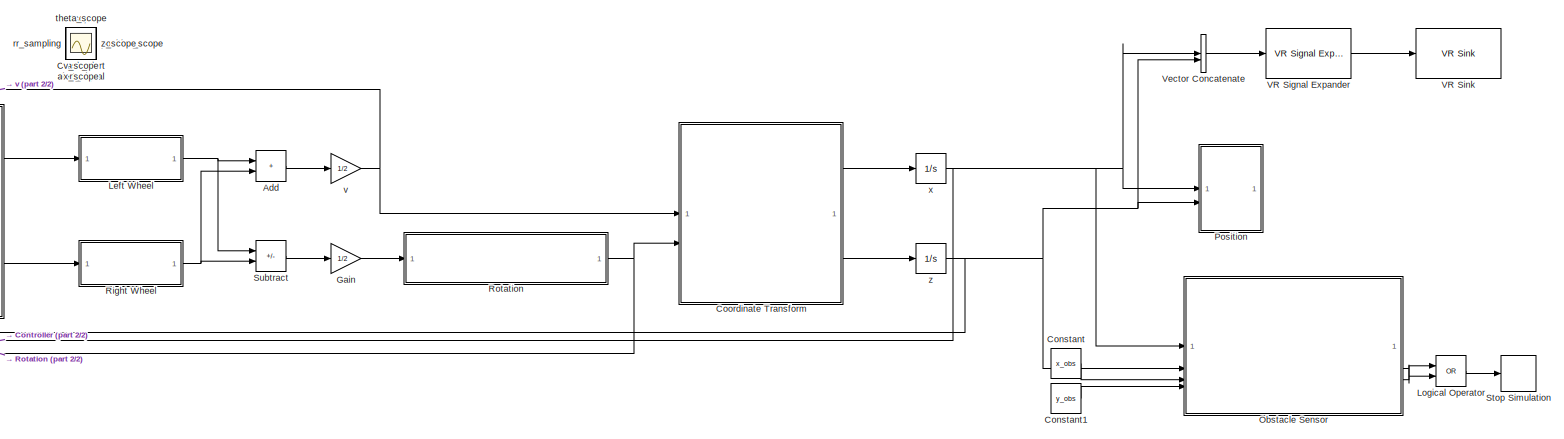
[diagram: root canvas - part 1/2, most of the canvas]
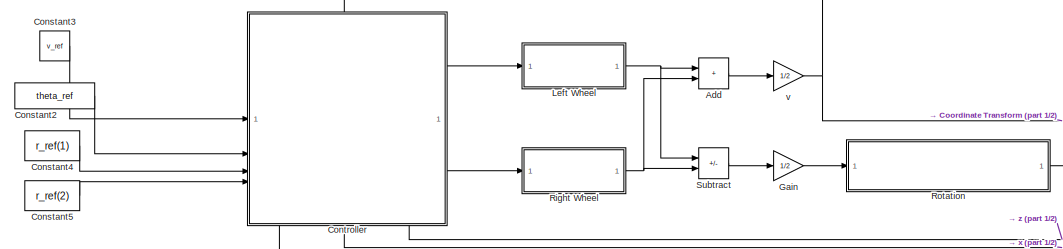
[diagram: root canvas - part 2/2, middle left region]
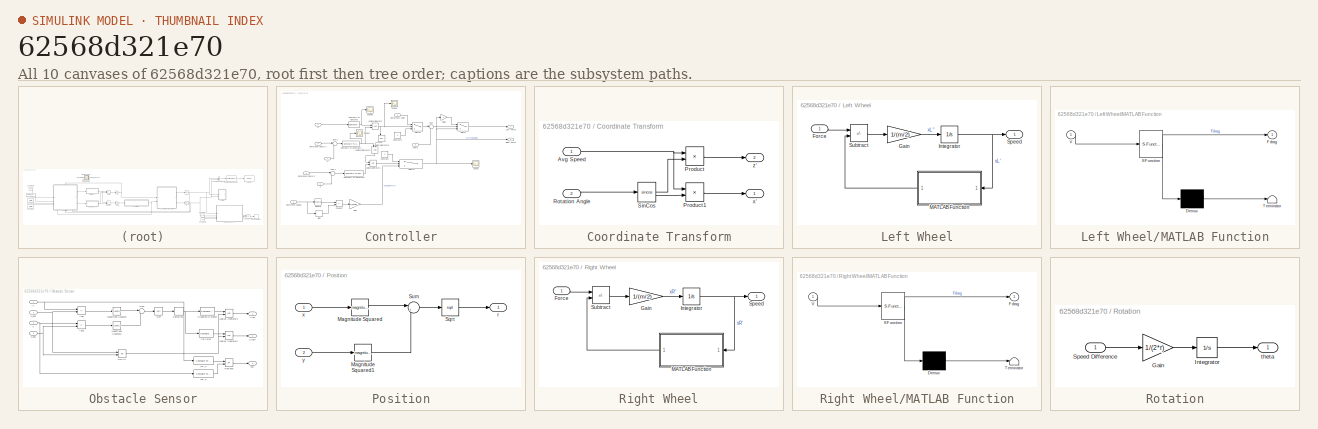
[diagram: thumbnail index - all 10 canvases of the model, root first then tree order]
MODEL slx_62568d321e70
KIND model
CONFIG AbsTol = auto
CONFIG EnableMultiTasking = off
CONFIG FixedStep = auto
CONFIG MaxStep = auto
CONFIG MinStep = auto
CONFIG RelTol = 1e-3
CONFIG SampleTimeConstraint = Unconstrained
CONFIG SolverName = VariableStepAuto
CONFIG StartTime = 0.0
CONFIG StopTime = 50.0
BLOCK [Sum] Add
  IconShape = rectangular
BLOCK [Constant] Constant
  Value = x_obs
BLOCK [Constant] Constant1
  Value = y_obs
BLOCK [Constant] Constant2
  Value = theta_ref
BLOCK [Constant] Constant3
  Value = v_ref
BLOCK [Constant] Constant4
  Value = r_ref(1)
BLOCK [Constant] Constant5
  Value = r_ref(2)
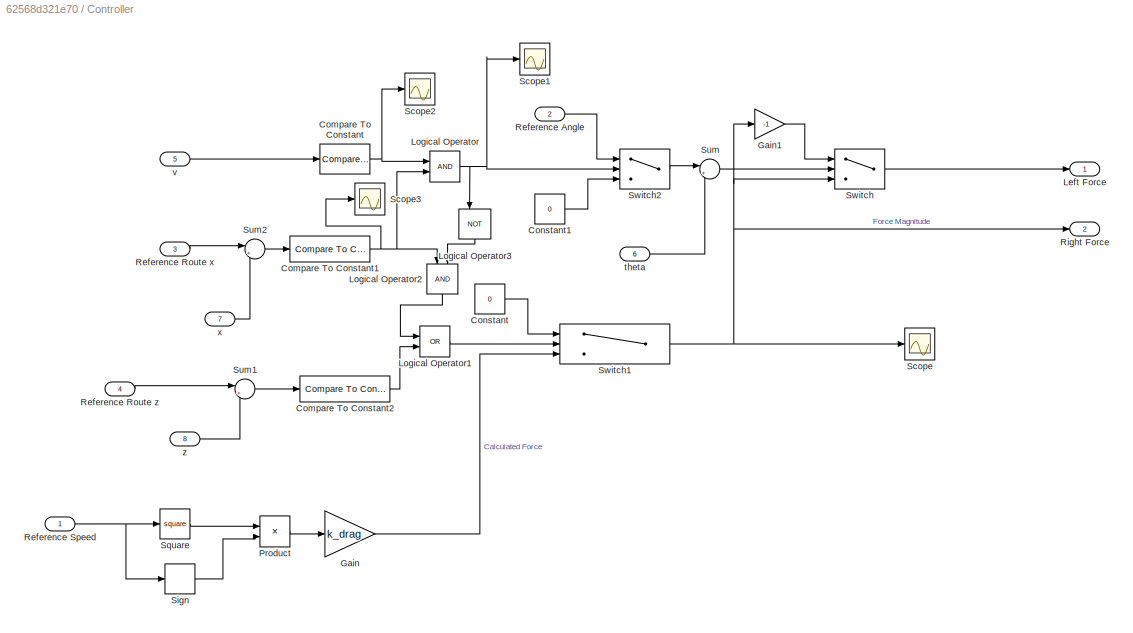
BLOCK [SubSystem] Controller
  PortSchema = {"entries":[{"content":{"sides":[{"content":{"connectorIds":["In1","In2","In3","In4"]},"type":"ConnectorPlacement.EquallySpacedRectSide","uuid":"ba94545e-9c5b-44f0-b142-601db8af74fa"},{"content":{"connectorIds":["Out1","Out2"],"side":"RIGHT"},"type":"ConnectorPlacement.EquallySpacedRectSide","uuid":"af029479-1ae4-4d42-872b-d9816a1308e5"},{"content":{"connectorIds":["In5"],"side":"TOP"},"type":"Con...<+431ch>
BLOCK [Reference] Controller/Compare To Constant  REF=simulink/Logic and Bit
Operations/Compare
To Constant
  SourceBlock = simulink/Logic and Bit\nOperations/Compare\nTo Constant
  SourceType = Compare To Constant
BLOCK [Reference] Controller/Compare To Constant1  REF=simulink/Logic and Bit
Operations/Compare
To Constant
  SourceBlock = simulink/Logic and Bit\nOperations/Compare\nTo Constant
  SourceType = Compare To Constant
BLOCK [Reference] Controller/Compare To Constant2  REF=simulink/Logic and Bit
Operations/Compare
To Constant
  SourceBlock = simulink/Logic and Bit\nOperations/Compare\nTo Constant
  SourceType = Compare To Constant
BLOCK [Constant] Controller/Constant
  Value = 0
BLOCK [Constant] Controller/Constant1
  Value = 0
BLOCK [Gain] Controller/Gain
  Gain = k_drag
BLOCK [Gain] Controller/Gain1
  Gain = -1
BLOCK [Outport] Controller/Left Force
BLOCK [Logic] Controller/Logical Operator
  AllPortsSameDT = off
  OutDataTypeStr = boolean
BLOCK [Logic] Controller/Logical Operator1
  AllPortsSameDT = off
  Operator = OR
  OutDataTypeStr = boolean
BLOCK [Logic] Controller/Logical Operator2
  AllPortsSameDT = off
  NameLocation = left
  OutDataTypeStr = boolean
BLOCK [Logic] Controller/Logical Operator3
  AllPortsSameDT = off
  NameLocation = left
  Operator = NOT
  OutDataTypeStr = boolean
BLOCK [Product] Controller/Product
BLOCK [Inport] Controller/Reference Angle
  Port = 2
BLOCK [Inport] Controller/Reference Route x
  Port = 3
BLOCK [Inport] Controller/Reference Route z
  Port = 4
BLOCK [Inport] Controller/Reference Speed
BLOCK [Outport] Controller/Right Force
  Port = 2
BLOCK [Scope] Controller/Scope
  Floating = off
  NumInputPorts = 1
  ScopeSpecificationString = Simulink.scopes.TimeScopeBlockCfg('CurrentConfiguration', extmgr.ConfigurationSet(extmgr.Configuration('Core','General UI',true),extmgr.Configuration('Core','Source UI',true),extmgr.Configuration('Sources','WiredSimulink',true,'DataLoggingVariableName','ScopeData1'),extmgr.Configuration('Visuals','Time Domain',true,'SerializedDisplays',{struct('MinYLimReal','0.872','MaxYLimReal','1.072','YLabelRea...<+1391ch>
BLOCK [Scope] Controller/Scope1
  Floating = off
  NumInputPorts = 1
  ScopeSpecificationString = Simulink.scopes.TimeScopeBlockCfg('CurrentConfiguration', extmgr.ConfigurationSet(extmgr.Configuration('Core','General UI',true),extmgr.Configuration('Core','Source UI',true),extmgr.Configuration('Sources','WiredSimulink',true,'DataLoggingVariableName','ScopeData1'),extmgr.Configuration('Visuals','Time Domain',true,'SerializedDisplays',{struct('MinYLimReal','-0.125','MaxYLimReal','1.125','YLabelRe...<+1426ch>
BLOCK [Scope] Controller/Scope2
  Floating = off
  NumInputPorts = 1
  ScopeSpecificationString = Simulink.scopes.TimeScopeBlockCfg('CurrentConfiguration', extmgr.ConfigurationSet(extmgr.Configuration('Core','General UI',true),extmgr.Configuration('Core','Source UI',true),extmgr.Configuration('Sources','WiredSimulink',true,'DataLoggingVariableName','ScopeData2'),extmgr.Configuration('Visuals','Time Domain',true,'SerializedDisplays',{struct('MinYLimReal','-0.125','MaxYLimReal','1.125','YLabelRe...<+1397ch>
BLOCK [Scope] Controller/Scope3
  Floating = off
  NumInputPorts = 1
  ScopeSpecificationString = Simulink.scopes.TimeScopeBlockCfg('CurrentConfiguration', extmgr.ConfigurationSet(extmgr.Configuration('Core','General UI',true),extmgr.Configuration('Core','Source UI',true),extmgr.Configuration('Sources','WiredSimulink',true,'DataLoggingVariableName','ScopeData3'),extmgr.Configuration('Visuals','Time Domain',true,'SerializedDisplays',{struct('MinYLimReal','-0.125','MaxYLimReal','1.125','YLabelRe...<+1398ch>
BLOCK [Signum] Controller/Sign
BLOCK [Math] Controller/Square
  Operator = square
BLOCK [Sum] Controller/Sum
  Inputs = |+-
BLOCK [Sum] Controller/Sum1
  Inputs = |+-
BLOCK [Sum] Controller/Sum2
  Inputs = |+-
BLOCK [Switch] Controller/Switch
  Criteria = u2 > Threshold
  InputSameDT = off
  SaturateOnIntegerOverflow = off
BLOCK [Switch] Controller/Switch1
  Criteria = u2 > Threshold
  InputSameDT = off
  SaturateOnIntegerOverflow = off
BLOCK [Switch] Controller/Switch2
  Criteria = u2 > Threshold
  InputSameDT = off
  SaturateOnIntegerOverflow = off
BLOCK [Inport] Controller/theta
  Port = 6
BLOCK [Inport] Controller/v
  Port = 5
BLOCK [Inport] Controller/x
  Port = 7
BLOCK [Inport] Controller/z
  Port = 8
BLOCK [SubSystem] Coordinate Transform
BLOCK [Inport] Coordinate Transform/Avg Speed
BLOCK [Product] Coordinate Transform/Product
BLOCK [Product] Coordinate Transform/Product1
BLOCK [Inport] Coordinate Transform/Rotation Angle
  Port = 2
BLOCK [Trigonometry] Coordinate Transform/SinCos
  Operator = sincos
BLOCK [Outport] Coordinate Transform/x'
BLOCK [Outport] Coordinate Transform/z'
  Port = 2
BLOCK [Scope] Crash_alert
  Floating = off
  IOType = viewer
  NumInputPorts = 1
  ScopeSpecificationString = Simulink.scopes.TimeScopeBlockCfg('CurrentConfiguration', extmgr.ConfigurationSet(extmgr.Configuration('Core','General UI',true),extmgr.Configuration('Core','Source UI',true),extmgr.Configuration('Sources','WiredSimulink',true,'DataLoggingVariableName','ScopeData5'),extmgr.Configuration('Visuals','Time Domain',true,'SerializedDisplays',{struct('MinYLimReal','-1.00000','MaxYLimReal','1.00000','YLab...<+1406ch>
BLOCK [Gain] Gain
  Gain = 1/2
BLOCK [SubSystem] Left Wheel
BLOCK [Inport] Left Wheel/Force
BLOCK [Gain] Left Wheel/Gain
  Gain = 1/(m/2)
BLOCK [Integrator] Left Wheel/Integrator
BLOCK [SubSystem] Left Wheel/MATLAB Function
  ErrorFcn = Stateflow.Translate.translate
  PermitHierarchicalResolution = ExplicitOnly
  SFBlockType = MATLAB Function
  TreatAsAtomicUnit = on
BLOCK [Demux] Left Wheel/MATLAB Function/ Demux 
  Outputs = 1
BLOCK [S-Function] Left Wheel/MATLAB Function/ SFunction 
  EnableBusSupport = on
  FunctionName = sf_sfun
  Parameters = k_drag
  PortCounts = [1 2]
  SFcnIsStateOwnerBlock = off
  SFunctionDeploymentMode = off
  Tag = Stateflow S-Function 1
BLOCK [Terminator] Left Wheel/MATLAB Function/ Terminator 
BLOCK [Outport] Left Wheel/MATLAB Function/Fdrag
BLOCK [Inport] Left Wheel/MATLAB Function/V
BLOCK [Outport] Left Wheel/Speed
BLOCK [Sum] Left Wheel/Subtract
  IconShape = rectangular
  Inputs = +-
BLOCK [Logic] Logical Operator
  AllPortsSameDT = off
  Operator = OR
  OutDataTypeStr = boolean
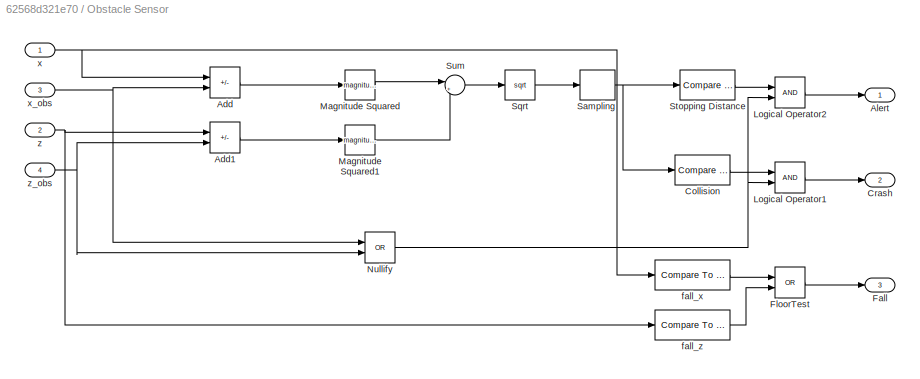
BLOCK [SubSystem] Obstacle Sensor
BLOCK [Sum] Obstacle Sensor/Add
  IconShape = rectangular
  Inputs = +-
BLOCK [Sum] Obstacle Sensor/Add1
  IconShape = rectangular
  Inputs = +-
BLOCK [Outport] Obstacle Sensor/Alert
BLOCK [Reference] Obstacle Sensor/Collision  REF=simulink/Logic and Bit
Operations/Compare
To Constant
  SourceBlock = simulink/Logic and Bit\nOperations/Compare\nTo Constant
  SourceType = Compare To Constant
BLOCK [Outport] Obstacle Sensor/Crash
  Port = 2
BLOCK [Outport] Obstacle Sensor/Fall
  Port = 3
BLOCK [Logic] Obstacle Sensor/FloorTest
  AllPortsSameDT = off
  Operator = OR
  OutDataTypeStr = boolean
BLOCK [Logic] Obstacle Sensor/Logical Operator1
  AllPortsSameDT = off
  OutDataTypeStr = boolean
BLOCK [Logic] Obstacle Sensor/Logical Operator2
  AllPortsSameDT = off
  OutDataTypeStr = boolean
BLOCK [Math] Obstacle Sensor/Magnitude Squared
  Operator = magnitude^2
BLOCK [Math] Obstacle Sensor/Magnitude Squared1
  Operator = magnitude^2
BLOCK [Logic] Obstacle Sensor/Nullify
  AllPortsSameDT = off
  Operator = OR
  OutDataTypeStr = boolean
BLOCK [ZeroOrderHold] Obstacle Sensor/Sampling
  SampleTime = 0.25
BLOCK [Sqrt] Obstacle Sensor/Sqrt
BLOCK [Reference] Obstacle Sensor/Stopping Distance  REF=simulink/Logic and Bit
Operations/Compare
To Constant
  SourceBlock = simulink/Logic and Bit\nOperations/Compare\nTo Constant
  SourceType = Compare To Constant
BLOCK [Sum] Obstacle Sensor/Sum
  Inputs = |++
BLOCK [Reference] Obstacle Sensor/fall_x  REF=simulink/Logic and Bit
Operations/Compare
To Constant
  SourceBlock = simulink/Logic and Bit\nOperations/Compare\nTo Constant
  SourceType = Compare To Constant
BLOCK [Reference] Obstacle Sensor/fall_z  REF=simulink/Logic and Bit
Operations/Compare
To Constant
  SourceBlock = simulink/Logic and Bit\nOperations/Compare\nTo Constant
  SourceType = Compare To Constant
BLOCK [Inport] Obstacle Sensor/x
BLOCK [Inport] Obstacle Sensor/x_obs
  Port = 3
BLOCK [Inport] Obstacle Sensor/z
  Port = 2
BLOCK [Inport] Obstacle Sensor/z_obs
  Port = 4
BLOCK [SubSystem] Position
BLOCK [Math] Position/Magnitude Squared
  Operator = magnitude^2
BLOCK [Math] Position/Magnitude Squared1
  Operator = magnitude^2
BLOCK [Sqrt] Position/Sqrt
BLOCK [Sum] Position/Sum
  Inputs = |++
BLOCK [Outport] Position/r
BLOCK [Inport] Position/x
BLOCK [Inport] Position/y
  Port = 2
BLOCK [SubSystem] Right Wheel
BLOCK [Inport] Right Wheel/Force
BLOCK [Gain] Right Wheel/Gain
  Gain = 1/(m/2)
BLOCK [Integrator] Right Wheel/Integrator
BLOCK [SubSystem] Right Wheel/MATLAB Function
  ErrorFcn = Stateflow.Translate.translate
  PermitHierarchicalResolution = ExplicitOnly
  SFBlockType = MATLAB Function
  TreatAsAtomicUnit = on
BLOCK [Demux] Right Wheel/MATLAB Function/ Demux 
  Outputs = 1
BLOCK [S-Function] Right Wheel/MATLAB Function/ SFunction 
  EnableBusSupport = on
  FunctionName = sf_sfun
  Parameters = k_drag
  PortCounts = [1 2]
  SFcnIsStateOwnerBlock = off
  SFunctionDeploymentMode = off
  Tag = Stateflow S-Function 2
BLOCK [Terminator] Right Wheel/MATLAB Function/ Terminator 
BLOCK [Outport] Right Wheel/MATLAB Function/Fdrag
BLOCK [Inport] Right Wheel/MATLAB Function/V
BLOCK [Outport] Right Wheel/Speed
BLOCK [Sum] Right Wheel/Subtract
  IconShape = rectangular
  Inputs = +-
BLOCK [SubSystem] Rotation
BLOCK [Gain] Rotation/Gain
  Gain = 1/(2*r)
BLOCK [Integrator] Rotation/Integrator
  InitialCondition = theta0
BLOCK [Inport] Rotation/Speed Difference
BLOCK [Outport] Rotation/theta
BLOCK [Scope] Scope
  Floating = off
  IOType = viewer
  NumInputPorts = 1
  ScopeSpecificationString = Simulink.scopes.TimeScopeBlockCfg('CurrentConfiguration', extmgr.ConfigurationSet(extmgr.Configuration('Core','General UI',true),extmgr.Configuration('Core','Source UI',true),extmgr.Configuration('Sources','WiredSimulink',true,'DataLoggingVariableName','ScopeData1'),extmgr.Configuration('Visuals','Time Domain',true,'SerializedDisplays',{struct('MinYLimReal','-0.81338','MaxYLimReal','3.46533','YLab...<+1364ch>
BLOCK [Stop] Stop Simulation
BLOCK [Sum] Subtract
  IconShape = rectangular
  Inputs = -+
BLOCK [Reference] VR Signal Expander  REF=vrlib/VR Signal Expander
  SourceBlock = vrlib/VR Signal Expander
  SourceType = VR Signal Expander
BLOCK [Reference] VR Sink  REF=vrlib/VR Sink
  InstantiateOnLoad = on
  SourceBlock = vrlib/VR Sink
  SourceType = Virtual Reality Sink
BLOCK [Concatenate] Vector Concatenate
BLOCK [Scope] alert_signal
  Floating = off
  IOType = viewer
  NumInputPorts = 1
  ScopeSpecificationString = Simulink.scopes.TimeScopeBlockCfg('CurrentConfiguration', extmgr.ConfigurationSet(extmgr.Configuration('Core','General UI',true),extmgr.Configuration('Core','Source UI',true),extmgr.Configuration('Sources','WiredSimulink',true,'DataLoggingVariableName','ScopeData5'),extmgr.Configuration('Visuals','Time Domain',true,'SerializedDisplays',{struct('MinYLimReal','-1.00000','MaxYLimReal','1.00000','YLab...<+1702ch>
BLOCK [Scope] position_scope
  Floating = off
  IOType = viewer
  NumInputPorts = 1
  ScopeSpecificationString = Simulink.scopes.TimeScopeBlockCfg('CurrentConfiguration', extmgr.ConfigurationSet(extmgr.Configuration('Core','General UI',true),extmgr.Configuration('Core','Source UI',true),extmgr.Configuration('Sources','WiredSimulink',true,'DataLoggingVariableName','ScopeData1'),extmgr.Configuration('Visuals','Time Domain',true,'SerializedDisplays',{struct('MinYLimReal','-0.58155','MaxYLimReal','5.23399','YLab...<+1722ch>
BLOCK [Scope] rr_sampling
  Floating = off
  IOType = viewer
  NumInputPorts = 1
  ScopeSpecificationString = Simulink.scopes.TimeScopeBlockCfg('CurrentConfiguration', extmgr.ConfigurationSet(extmgr.Configuration('Core','General UI',true),extmgr.Configuration('Core','Source UI',true),extmgr.Configuration('Sources','WiredSimulink',true,'DataLoggingVariableName','ScopeData1'),extmgr.Configuration('Visuals','Time Domain',true,'SerializedDisplays',{struct('MinYLimReal','-0.42527','MaxYLimReal','3.82747','YLab...<+1396ch>
BLOCK [Scope] theta_scope
  Floating = off
  IOType = viewer
  NumInputPorts = 1
  ScopeSpecificationString = Simulink.scopes.TimeScopeBlockCfg('CurrentConfiguration', extmgr.ConfigurationSet(extmgr.Configuration('Core','General UI',true),extmgr.Configuration('Core','Source UI',true),extmgr.Configuration('Sources','WiredSimulink',true,'DataLoggingVariableName','ScopeData3'),extmgr.Configuration('Visuals','Time Domain',true,'SerializedDisplays',{struct('MinYLimReal','-0.21049','MaxYLimReal','1.89437','YLab...<+1711ch>
BLOCK [Gain] v
  Gain = 1/2
BLOCK [Scope] v_scope
  Floating = off
  IOType = viewer
  NumInputPorts = 1
  ScopeSpecificationString = Simulink.scopes.TimeScopeBlockCfg('CurrentConfiguration', extmgr.ConfigurationSet(extmgr.Configuration('Core','General UI',true),extmgr.Configuration('Core','Source UI',true),extmgr.Configuration('Sources','WiredSimulink',true,'DataLoggingVariableName','ScopeData2'),extmgr.Configuration('Visuals','Time Domain',true,'SerializedDisplays',{struct('MinYLimReal','-0.0225','MaxYLimReal','0.2025','YLabel...<+1683ch>
BLOCK [Integrator] x
BLOCK [Scope] x_scope
  Floating = off
  IOType = viewer
  NumInputPorts = 1
  ScopeSpecificationString = Simulink.scopes.TimeScopeBlockCfg('CurrentConfiguration', extmgr.ConfigurationSet(extmgr.Configuration('Core','General UI',true),extmgr.Configuration('Core','Source UI',true),extmgr.Configuration('Sources','WiredSimulink',true),extmgr.Configuration('Visuals','Time Domain',true,'SerializedDisplays',{struct('MinYLimReal','-0.35975','MaxYLimReal','3.23772','YLabelReal','','MinYLimMag','0.00000','MaxY...<+1350ch>
BLOCK [Integrator] z
BLOCK [Scope] z_scope
  Floating = off
  IOType = viewer
  NumInputPorts = 1
  ScopeSpecificationString = Simulink.scopes.TimeScopeBlockCfg('CurrentConfiguration', extmgr.ConfigurationSet(extmgr.Configuration('Core','General UI',true),extmgr.Configuration('Core','Source UI',true),extmgr.Configuration('Sources','WiredSimulink',true,'DataLoggingVariableName','ScopeData1'),extmgr.Configuration('Visuals','Time Domain',true,'SerializedDisplays',{struct('MinYLimReal','-0.22681','MaxYLimReal','2.04125','YLab...<+1393ch>
LINE Add:1 -> v:1
LINE Constant1:1 -> Obstacle Sensor:4
LINE Constant2:1 -> Controller:2
LINE Constant3:1 -> Controller:1
LINE Constant4:1 -> Controller:3
LINE Constant5:1 -> Controller:4
LINE Constant:1 -> Obstacle Sensor:3
NET Controller/Compare To Constant1:1 -> Controller/Logical Operator2:1, Controller/Logical Operator:2, Controller/Scope3:1
LINE Controller/Compare To Constant2:1 -> Controller/Logical Operator1:2
NET Controller/Compare To Constant:1 -> Controller/Logical Operator:1, Controller/Scope2:1
LINE Controller/Constant1:1 -> Controller/Switch2:3
LINE Controller/Constant:1 -> Controller/Switch1:1
LINE Controller/Gain1:1 -> Controller/Switch:1
LINE Controller/Gain:1 -> Controller/Switch1:3
LINE Controller/Logical Operator1:1 -> Controller/Switch1:2
LINE Controller/Logical Operator2:1 -> Controller/Logical Operator1:1
LINE Controller/Logical Operator3:1 -> Controller/Logical Operator2:2
NET Controller/Logical Operator:1 -> Controller/Logical Operator3:1, Controller/Scope1:1, Controller/Switch2:2
LINE Controller/Product:1 -> Controller/Gain:1
LINE Controller/Reference Angle:1 -> Controller/Switch2:1
LINE Controller/Reference Route x:1 -> Controller/Sum2:1
LINE Controller/Reference Route z:1 -> Controller/Sum1:1
NET Controller/Reference Speed:1 -> Controller/Sign:1, Controller/Square:1
LINE Controller/Sign:1 -> Controller/Product:2
LINE Controller/Square:1 -> Controller/Product:1
LINE Controller/Sum1:1 -> Controller/Compare To Constant2:1
LINE Controller/Sum2:1 -> Controller/Compare To Constant1:1
LINE Controller/Sum:1 -> Controller/Switch:2
NET Controller/Switch1:1 -> Controller/Gain1:1, Controller/Right Force:1, Controller/Scope:1, Controller/Switch:3
LINE Controller/Switch2:1 -> Controller/Sum:1
LINE Controller/Switch:1 -> Controller/Left Force:1
LINE Controller/theta:1 -> Controller/Sum:2
LINE Controller/v:1 -> Controller/Compare To Constant:1
LINE Controller/x:1 -> Controller/Sum2:2
LINE Controller/z:1 -> Controller/Sum1:2
LINE Controller:1 -> Left Wheel:1
LINE Controller:2 -> Right Wheel:1
NET Coordinate Transform/Avg Speed:1 -> Coordinate Transform/Product1:1, Coordinate Transform/Product:1
LINE Coordinate Transform/Product1:1 -> Coordinate Transform/x':1
LINE Coordinate Transform/Product:1 -> Coordinate Transform/z':1
LINE Coordinate Transform/Rotation Angle:1 -> Coordinate Transform/SinCos:1
LINE Coordinate Transform/SinCos:1 -> Coordinate Transform/Product:2
LINE Coordinate Transform/SinCos:2 -> Coordinate Transform/Product1:2
LINE Coordinate Transform:1 -> x:1
LINE Coordinate Transform:2 -> z:1
LINE Gain:1 -> Rotation:1
LINE Left Wheel/Force:1 -> Left Wheel/Subtract:1
LINE Left Wheel/Gain:1 -> Left Wheel/Integrator:1
NET Left Wheel/Integrator:1 -> Left Wheel/MATLAB Function:1, Left Wheel/Speed:1
LINE Left Wheel/MATLAB Function:1 -> Left Wheel/Subtract:2
LINE Left Wheel/Subtract:1 -> Left Wheel/Gain:1
NET Left Wheel:1 -> Add:1, Subtract:1
LINE Logical Operator:1 -> Stop Simulation:1
LINE Obstacle Sensor/Add1:1 -> Obstacle Sensor/Magnitude Squared1:1
LINE Obstacle Sensor/Add:1 -> Obstacle Sensor/Magnitude Squared:1
LINE Obstacle Sensor/Collision:1 -> Obstacle Sensor/Logical Operator1:1
LINE Obstacle Sensor/FloorTest:1 -> Obstacle Sensor/Fall:1
LINE Obstacle Sensor/Logical Operator1:1 -> Obstacle Sensor/Crash:1
LINE Obstacle Sensor/Logical Operator2:1 -> Obstacle Sensor/Alert:1
LINE Obstacle Sensor/Magnitude Squared1:1 -> Obstacle Sensor/Sum:2
LINE Obstacle Sensor/Magnitude Squared:1 -> Obstacle Sensor/Sum:1
NET Obstacle Sensor/Nullify:1 -> Obstacle Sensor/Logical Operator1:2, Obstacle Sensor/Logical Operator2:2
NET Obstacle Sensor/Sampling:1 -> Obstacle Sensor/Collision:1, Obstacle Sensor/Stopping Distance:1
LINE Obstacle Sensor/Sqrt:1 -> Obstacle Sensor/Sampling:1
LINE Obstacle Sensor/Stopping Distance:1 -> Obstacle Sensor/Logical Operator2:1
LINE Obstacle Sensor/Sum:1 -> Obstacle Sensor/Sqrt:1
LINE Obstacle Sensor/fall_x:1 -> Obstacle Sensor/FloorTest:1
LINE Obstacle Sensor/fall_z:1 -> Obstacle Sensor/FloorTest:2
NET Obstacle Sensor/x:1 -> Obstacle Sensor/Add:1, Obstacle Sensor/fall_x:1
NET Obstacle Sensor/x_obs:1 -> Obstacle Sensor/Add:2, Obstacle Sensor/Nullify:1
NET Obstacle Sensor/z:1 -> Obstacle Sensor/Add1:1, Obstacle Sensor/fall_z:1
NET Obstacle Sensor/z_obs:1 -> Obstacle Sensor/Add1:2, Obstacle Sensor/Nullify:2
LINE Obstacle Sensor:2 -> Logical Operator:1
LINE Obstacle Sensor:3 -> Logical Operator:2
LINE Position/Magnitude Squared1:1 -> Position/Sum:2
LINE Position/Magnitude Squared:1 -> Position/Sum:1
LINE Position/Sqrt:1 -> Position/r:1
LINE Position/Sum:1 -> Position/Sqrt:1
LINE Position/x:1 -> Position/Magnitude Squared:1
LINE Position/y:1 -> Position/Magnitude Squared1:1
LINE Right Wheel/Force:1 -> Right Wheel/Subtract:1
LINE Right Wheel/Gain:1 -> Right Wheel/Integrator:1
NET Right Wheel/Integrator:1 -> Right Wheel/MATLAB Function:1, Right Wheel/Speed:1
LINE Right Wheel/MATLAB Function:1 -> Right Wheel/Subtract:2
LINE Right Wheel/Subtract:1 -> Right Wheel/Gain:1
NET Right Wheel:1 -> Add:2, Subtract:2
LINE Rotation/Gain:1 -> Rotation/Integrator:1
LINE Rotation/Integrator:1 -> Rotation/theta:1
LINE Rotation/Speed Difference:1 -> Rotation/Gain:1
NET Rotation:1 -> Controller:6, Coordinate Transform:2
LINE Subtract:1 -> Gain:1
LINE VR Signal Expander:1 -> VR Sink:1
LINE Vector Concatenate:1 -> VR Signal Expander:1
NET v:1 -> Controller:5, Coordinate Transform:1
NET x:1 -> Controller:7, Obstacle Sensor:1, Position:1, Vector Concatenate:1
NET z:1 -> Controller:8, Obstacle Sensor:2, Position:2, Vector Concatenate:2
note: NET lines group one-source signal fan-out (src -> all destinations, sorted); 1:1 wires keep LINE
CHART Right Wheel/MATLAB Function states=1 transitions=1
  STATE_LABEL 'eML_blk_kernel()'
  STATE_LABEL 'SCRIPT:\nfunction Fdrag=get_fdrag(V, k_drag)\n\nFdrag=k_drag*V*abs(V);'
CHART Left Wheel/MATLAB Function states=1 transitions=1
  STATE_LABEL 'eML_blk_kernel()'
  STATE_LABEL 'SCRIPT:\nfunction Fdrag=get_fdrag(V, k_drag)\n\nFdrag=k_drag*V*abs(V);'
CHART  states=0 transitions=0
CHART  states=0 transitions=0
